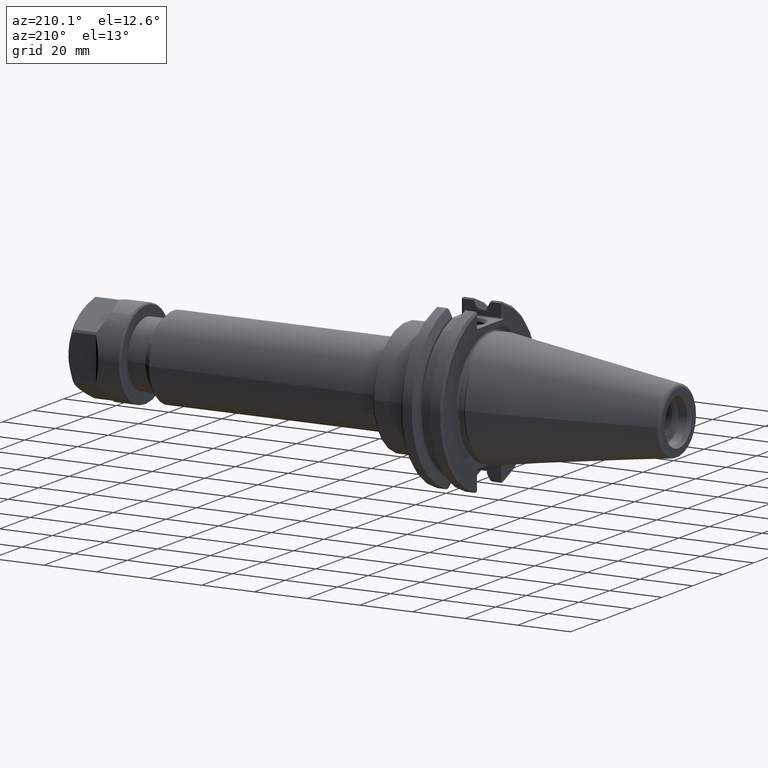
[diagram: clean part render]
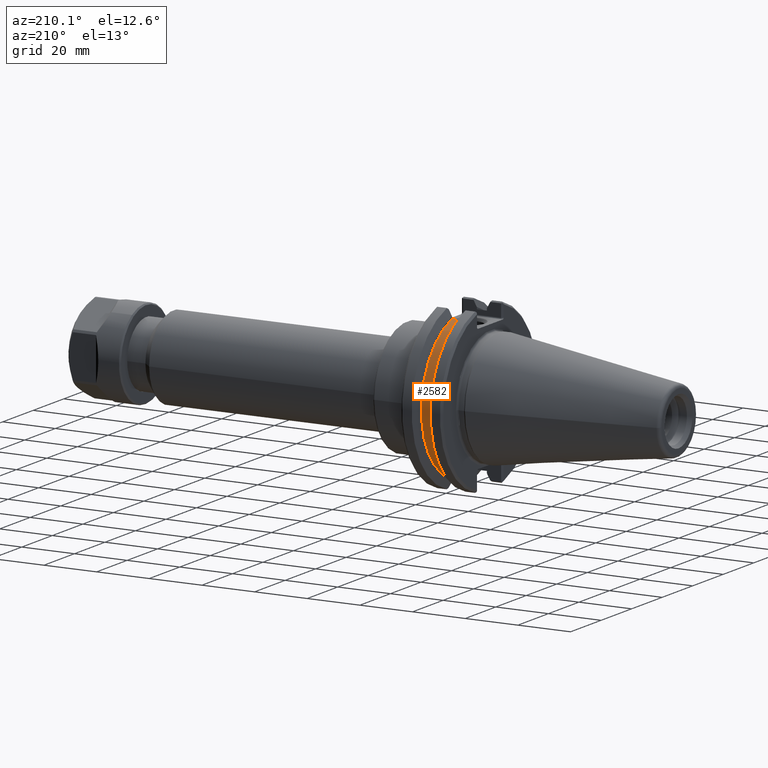
[diagram: same view with one face highlighted and labeled with its STEP entity id]
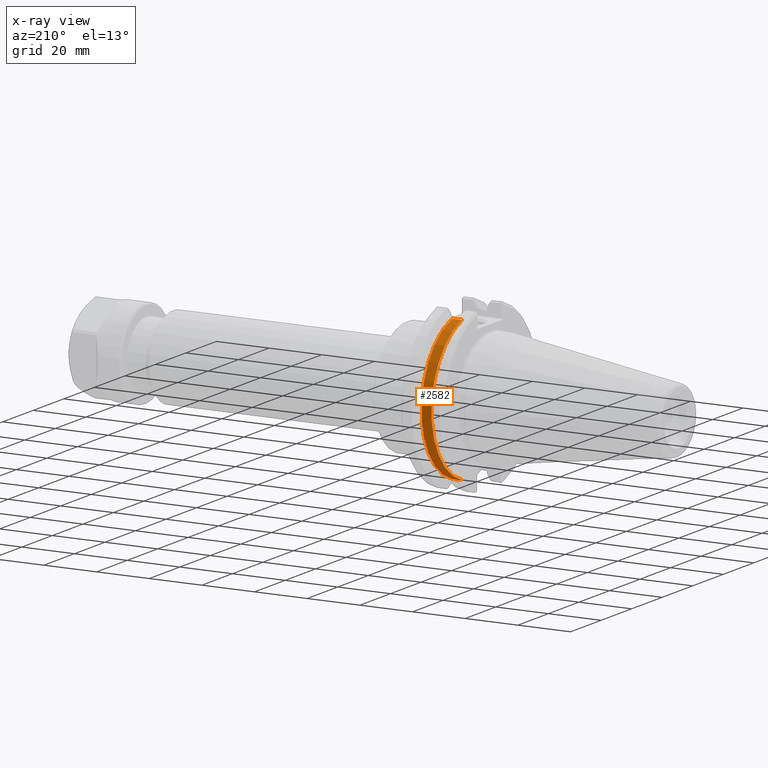
[diagram: x-ray of the same camera — body ghosted, the highlighted face saturated]
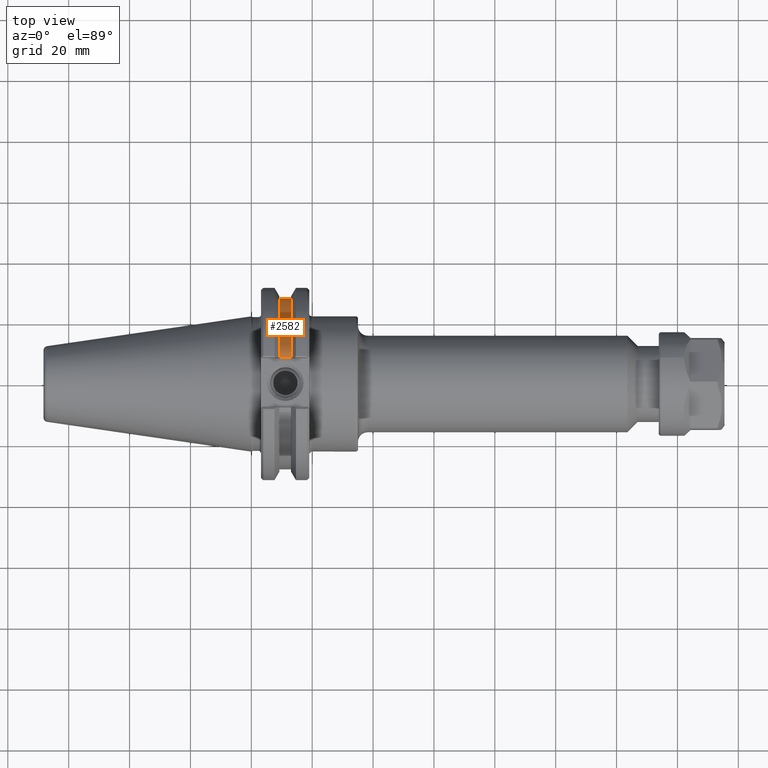
[diagram: same view with one face highlighted and labeled with its STEP entity id]
A machine part, auxiliary view. The second image highlights one B-rep face of the part: STEP entity #2582.
The next image is the same camera in x-ray: the body ghosted, the highlighted face saturated — about 0% of this face is hidden behind the body in this view.
A second angle (top view) of the same face is appended — the face is thin or edge-on in the first view.
In plain terms, the highlighted cylindrical surface (partial cylindrical patch) has radius 28.1813 mm, axis along (-1, -0, 0).
Its self-contained STEP definition (entity closure, byte-faithful):
#1042=CARTESIAN_POINT('',(0.513849999999919,0.320000000000281,1.062351283709557));
#1043=VERTEX_POINT('',#1042);
#1050=CARTESIAN_POINT('',(0.362849999999919,0.320000000000281,1.062351283709575));
#1051=VERTEX_POINT('',#1050);
#1052=CARTESIAN_POINT('',(0.362849999999919,0.320000000000269,1.062351283709566));
#1053=DIRECTION('',(1.0,1.624896E-013,0.0));
#1054=VECTOR('',#1053,0.151);
#1055=LINE('',#1052,#1054);
#1056=EDGE_CURVE('',#1051,#1043,#1055,.T.);
#1710=CARTESIAN_POINT('',(0.362849999999919,0.320000000000277,-1.062351283709576));
#1711=VERTEX_POINT('',#1710);
#1718=CARTESIAN_POINT('',(0.513849999999919,0.320000000000302,-1.062351283709551));
#1719=VERTEX_POINT('',#1718);
#1720=CARTESIAN_POINT('',(0.513849999999919,0.320000000000302,-1.062351283709564));
#1721=DIRECTION('',(-1.0,-1.624896E-013,0.0));
#1722=VECTOR('',#1721,0.151);
#1723=LINE('',#1720,#1722);
#1724=EDGE_CURVE('',#1719,#1711,#1723,.T.);
#2553=CARTESIAN_POINT('',(0.513849999999971,3.017696E-013,0.0));
#2554=DIRECTION('',(-1.0,-1.624821E-013,0.0));
#2555=DIRECTION('',(-1.624821E-013,1.0,0.0));
#2556=AXIS2_PLACEMENT_3D('',#2553,#2554,#2555);
#2557=CIRCLE('',#2556,1.109499999999698);
#2558=EDGE_CURVE('',#1043,#1719,#2557,.T.);
#2565=CARTESIAN_POINT('',(0.438349999999971,2.895046E-013,0.0));
#2566=DIRECTION('',(-1.0,-1.624514E-013,0.0));
#2567=DIRECTION('',(-1.624821E-013,1.0,0.0));
#2568=AXIS2_PLACEMENT_3D('',#2565,#2566,#2567);
#2569=CYLINDRICAL_SURFACE('',#2568,1.109499999999711);
#2570=ORIENTED_EDGE('',*,*,#1724,.T.);
#2571=CARTESIAN_POINT('',(0.362849999999971,2.772395E-013,0.0));
#2572=DIRECTION('',(-1.0,-1.624821E-013,0.0));
#2573=DIRECTION('',(-1.624821E-013,1.0,0.0));
#2574=AXIS2_PLACEMENT_3D('',#2571,#2572,#2573);
#2575=CIRCLE('',#2574,1.109499999999723);
#2576=EDGE_CURVE('',#1051,#1711,#2575,.T.);
#2577=ORIENTED_EDGE('',*,*,#2576,.F.);
#2578=ORIENTED_EDGE('',*,*,#1056,.T.);
#2579=ORIENTED_EDGE('',*,*,#2558,.T.);
#2580=EDGE_LOOP('',(#2570,#2577,#2578,#2579));
#2581=FACE_OUTER_BOUND('',#2580,.T.);
#2582=ADVANCED_FACE('',(#2581),#2569,.T.);